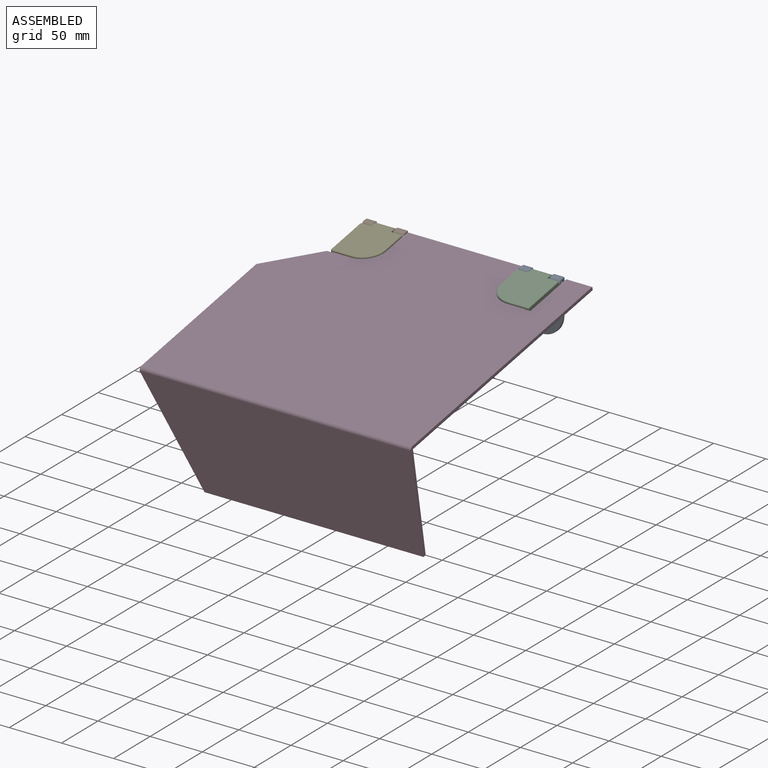
[diagram: assembled view]
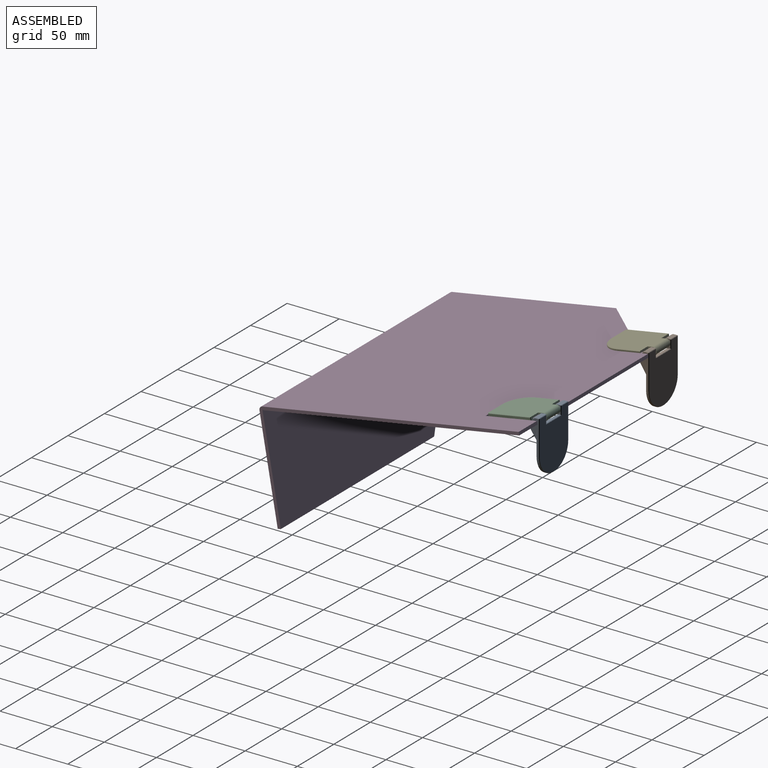
[diagram: assembled view, second angle]
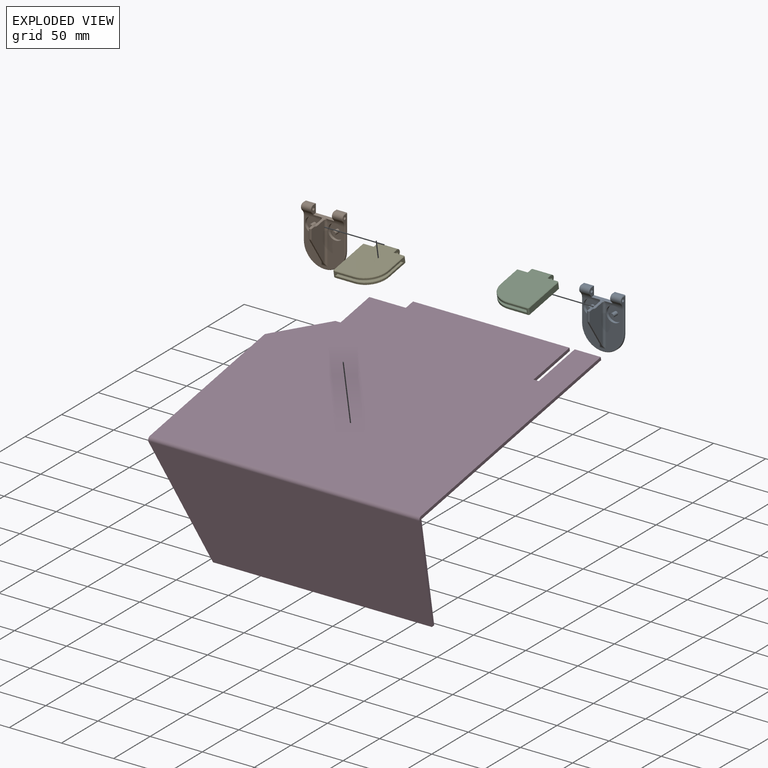
[diagram: exploded view]
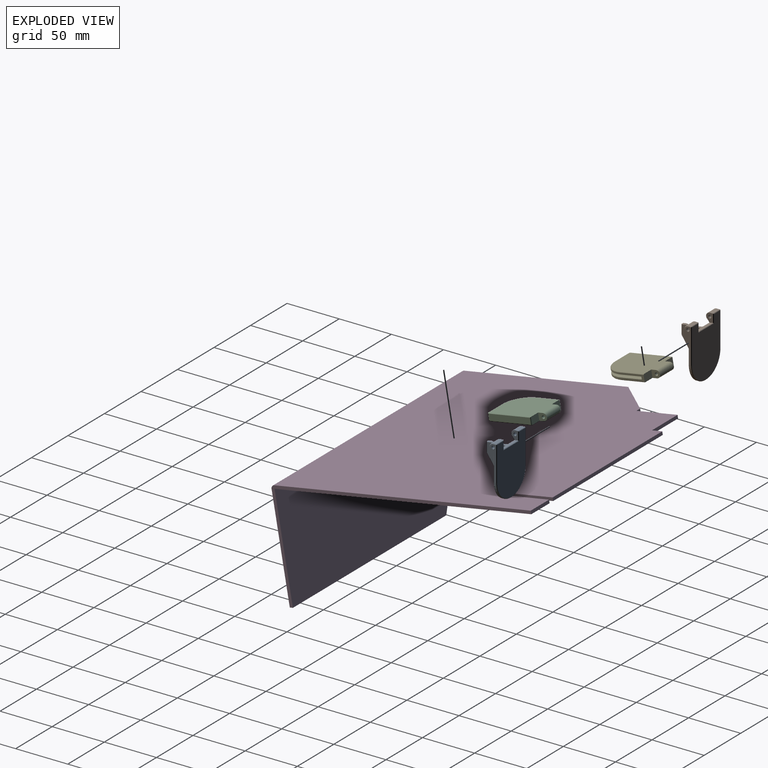
[diagram: exploded view, second angle]
ASSEMBLY  parts=5 mates=4
PART A: 77 faces, bbox 40x53.5x23 mm
  f0: plane 40.78x39mm, normal (0,0,1), area 843.5mm2, adj f6,f23,f24,f25,f29,f32,f48,f49
  f1: plane 9.5x3.08mm, normal (0,1,0), area 29.3mm2, adj f2,f12,f38,f53
  f2: cylinder r=3.5mm len=9.5mm, axis (1,0,0), area 80.8mm2, adj f1,f6,f12,f52
  f3: cylinder r=1.5mm len=10mm, axis (1,0,0), area 94.2mm2, adj f10,f12
  f4: plane 9.5x3.08mm, normal (0,1,0), area 29.3mm2, adj f5,f11,f43,f45
  f5: cylinder r=3.5mm len=9.5mm, axis (1,0,0), area 80.8mm2, adj f4,f6,f11,f46
  f6: cylinder r=8mm len=39mm, axis (1,0,0), area 162.6mm2, adj f0,f2,f5,f11,f12,f13,f16,f22
  f7: plane 52.66x39.16mm, normal (0,0,-1), area 1729.3mm2, adj f37,f38,f39,f40,f41,f42,f43,f44
  f8: cylinder r=1.5mm len=10mm, axis (1,0,0), area 94.2mm2, adj f9,f11
  f9: plane 33x6.08mm, normal (-1,0,0), area 85.9mm2, adj f8,f36,f44,f45,f46,f47,f48
  f10: plane 33x6.08mm, normal (1,0,0), area 85.9mm2, adj f3,f36,f40,f50,f51,f52,f53
  f11: plane 8.68x6.58mm, normal (1,0,0), area 39.5mm2, adj f4,f5,f6,f8,f13,f39,f41
  f12: plane 8.68x6.58mm, normal (-1,0,0), area 39.5mm2, adj f1,f2,f3,f6,f13,f37,f39
  f13: plane 20x3.34mm, normal (0,0.98,0.17), area 67.7mm2, adj f6,f11,f12,f39
  f14: plane 36.55x17.5mm, normal (-1,0,0), area 393.9mm2, adj f25,f26,f56,f58,f59,f61,f62,f64
  f15: plane 36.55x17.5mm, normal (1,0,0), area 393.9mm2, adj f22,f23,f66,f68,f70,f72,f73,f74
  f16: plane 10.26x3.21mm, normal (0,0.98,0.17), area 16.6mm2, adj f6,f17,f54,f56,f75,f76
  f17: cylinder r=5.76mm len=3mm, axis (1,0,0), area 4.6mm2, adj f16,f18,f58,f74
  f18: cylinder r=5.76mm len=3mm, axis (1,0,0), area 4.6mm2, adj f17,f19,f61,f73
  f19: plane 2.54x1.5mm, normal (0,0.98,0.17), area 3.9mm2, adj f18,f64,f69,f72
  f20: plane 8.57x1.5mm, normal (0,0,1), area 12.9mm2, adj f27,f65,f69,f70
  f21: plane 28.89x19.35mm, normal (0,-0.56,0.83), area 54.6mm2, adj f24,f27,f57,f59,f63,f66
  f22: torus R=6mm, axis (-1,0,0), area 9.4mm2, adj f6,f15,f23,f76
  f23: cylinder r=2mm len=38.39mm, axis (0,1,0), area 114mm2, adj f0,f15,f22,f60,f63
  f24: cylinder r=2mm len=6.5mm, axis (1,0,0), area 6mm2, adj f0,f21,f55,f60
  f25: cylinder r=2mm len=38.39mm, axis (0,-1,0), area 114mm2, adj f0,f14,f26,f55,f57
  f26: torus R=6mm, axis (-1,0,0), area 9.4mm2, adj f6,f14,f25,f54
  f27: cylinder r=2mm len=1.5mm, axis (1,0,0), area 1.8mm2, adj f20,f21,f62,f68
  f28: cylinder r=1.85mm len=5.6mm, axis (0,0,1), area 65.1mm2, adj f30,f35
  f29: cylinder r=7.5mm len=15mm, axis (0,0,1), area 122.5mm2, adj f0,f6,f30
  f30: plane 15x15mm, normal (0,0,1), area 166mm2, adj f28,f29
  f31: cylinder r=1.85mm len=5.6mm, axis (0,0,1), area 65.1mm2, adj f33,f34
  f32: cylinder r=7.5mm len=15mm, axis (0,0,1), area 122.5mm2, adj f0,f6,f33
  f33: plane 15x15mm, normal (0,0,1), area 166mm2, adj f31,f32
  f34: plane 3.7x3.7mm, normal (0,0,1), area 10.8mm2, adj f31
  f35: plane 3.7x3.7mm, normal (0,0,1), area 10.8mm2, adj f28
  f36: cylinder r=20mm len=40mm, axis (0,0,1), area 130.7mm2, adj f9,f10,f42,f49
  f37: plane 8.5x0.42mm, normal (-0.71,0,-0.71), area 4.8mm2, adj f7,f12,f38,f39
  f38: plane 9.75x0.42mm, normal (0,0.71,-0.71), area 5.6mm2, adj f1,f7,f37,f40,f53
  f39: plane 20.84x0.49mm, normal (0,0.77,-0.64), area 13.1mm2, adj f7,f11,f12,f13,f37,f41
  f40: plane 33.25x0.42mm, normal (0.71,0,-0.71), area 19.7mm2, adj f7,f10,f38,f42,f53
  f41: plane 8.5x0.42mm, normal (0.71,0,-0.71), area 4.8mm2, adj f7,f11,f39,f43
  f42: cone r=19.58mm half-angle=45deg, axis (0,0,1), area 36.9mm2, adj f7,f36,f40,f44
  f43: plane 9.75x0.42mm, normal (0,0.71,-0.71), area 5.6mm2, adj f4,f7,f41,f44,f45
  f44: plane 33.25x0.42mm, normal (-0.71,0,-0.71), area 19.7mm2, adj f7,f9,f42,f43,f45
  f45: plane 3.33x0.5mm, normal (-0.71,0.71,0), area 2.3mm2, adj f4,f9,f43,f44,f46
  f46: cone r=3mm half-angle=45deg, axis (1,0,0), area 5.6mm2, adj f5,f9,f45,f47
  f47: cone r=8mm half-angle=45deg, axis (-1,0,0), area 5mm2, adj f6,f9,f46,f48
  f48: plane 21.28x0.5mm, normal (-0.71,0,0.71), area 15mm2, adj f0,f9,f47,f49
  f49: cone r=19.5mm half-angle=45deg, axis (0,0,-1), area 43.9mm2, adj f0,f36,f48,f50
  f50: plane 21.28x0.5mm, normal (0.71,0,0.71), area 15mm2, adj f0,f10,f49,f51
  f51: cone r=8.5mm half-angle=45deg, axis (1,0,0), area 5mm2, adj f6,f10,f50,f52
  f52: cone r=3.5mm half-angle=45deg, axis (-1,0,0), area 5.6mm2, adj f2,f10,f51,f53
  f53: plane 3.33x0.5mm, normal (0.71,0.71,0), area 2.3mm2, adj f1,f10,f38,f40,f52
  f54: bspline ~2.53x2.5mm, area 2.1mm2, adj f6,f16,f26,f56
  f55: bspline ~1.39x1.39mm, area 0.2mm2, adj f24,f25,f57
  f56: plane 8.43x1.96mm, normal (-0.71,0.7,0.12), area 6mm2, adj f14,f16,f54,f58
  f57: bspline ~3.38x2.08mm, area 2.1mm2, adj f21,f25,f55,f59
  f58: cone r=5.76mm half-angle=45deg, axis (-1,0,0), area 2.2mm2, adj f14,f17,f56,f61
  f59: plane 26.04x17.66mm, normal (-0.71,-0.39,0.59), area 21.9mm2, adj f14,f21,f57,f62
  f60: bspline ~1.39x1.39mm, area 0.2mm2, adj f23,f24,f63
  f61: cone r=5.26mm half-angle=45deg, axis (1,0,0), area 2.1mm2, adj f14,f18,f58,f64
  f62: cone r=1.5mm half-angle=45deg, axis (1,0,0), area 0.7mm2, adj f14,f27,f59,f65
  f63: bspline ~3.38x2.08mm, area 2.1mm2, adj f21,f23,f60,f66
  f64: plane 2.63x0.94mm, normal (-0.71,0.7,0.12), area 1.8mm2, adj f14,f19,f61,f67
  f65: plane 8.57x0.5mm, normal (-0.71,0,0.71), area 6.1mm2, adj f14,f20,f62,f67
  f66: plane 26.04x17.66mm, normal (0.71,-0.39,0.59), area 21.9mm2, adj f15,f21,f63,f68
  f67: plane 0.5x0.5mm, normal (-0.61,0.51,0.61), area 0.2mm2, adj f64,f65,f69
  f68: cone r=1.5mm half-angle=45deg, axis (-1,0,0), area 0.7mm2, adj f15,f27,f66,f70
  f69: plane 1.5x0.49mm, normal (0,0.64,0.77), area 1mm2, adj f19,f20,f67,f71
  f70: plane 8.57x0.5mm, normal (0.71,0,0.71), area 6.1mm2, adj f15,f20,f68,f71
  f71: plane 0.5x0.5mm, normal (0.61,0.51,0.61), area 0.2mm2, adj f69,f70,f72
  f72: plane 2.63x0.94mm, normal (0.71,0.7,0.12), area 1.8mm2, adj f15,f19,f71,f73
  f73: cone r=5.76mm half-angle=45deg, axis (-1,0,0), area 2.1mm2, adj f15,f18,f72,f74
  f74: cone r=6.26mm half-angle=45deg, axis (1,0,0), area 2.2mm2, adj f15,f17,f73,f75
  f75: plane 8.43x1.96mm, normal (0.71,0.7,0.12), area 6mm2, adj f15,f16,f74,f76
  f76: bspline ~2.53x2.5mm, area 2.1mm2, adj f6,f16,f22,f75
PART B: 77 faces, bbox 40x53.5x23 mm
  f0: plane 40.78x39mm, normal (0,0,1), area 843.5mm2, adj f6,f23,f24,f25,f29,f32,f48,f49
  f1: plane 9.5x3.08mm, normal (0,1,0), area 29.3mm2, adj f2,f12,f38,f53
  f2: cylinder r=3.5mm len=9.5mm, axis (-1,0,0), area 80.8mm2, adj f1,f6,f12,f52
  f3: cylinder r=1.5mm len=10mm, axis (-1,0,0), area 94.2mm2, adj f10,f12
  f4: plane 9.5x3.08mm, normal (0,1,0), area 29.3mm2, adj f5,f11,f43,f45
  f5: cylinder r=3.5mm len=9.5mm, axis (-1,0,0), area 80.8mm2, adj f4,f6,f11,f46
  f6: cylinder r=8mm len=39mm, axis (-1,0,0), area 162.6mm2, adj f0,f2,f5,f11,f12,f13,f16,f22
  f7: plane 52.66x39.16mm, normal (0,0,-1), area 1729.3mm2, adj f37,f38,f39,f40,f41,f42,f43,f44
  f8: cylinder r=1.5mm len=10mm, axis (-1,0,0), area 94.2mm2, adj f9,f11
  f9: plane 33x6.08mm, normal (1,0,0), area 85.9mm2, adj f8,f36,f44,f45,f46,f47,f48
  f10: plane 33x6.08mm, normal (-1,0,0), area 85.9mm2, adj f3,f36,f40,f50,f51,f52,f53
  f11: plane 8.68x6.58mm, normal (-1,0,0), area 39.5mm2, adj f4,f5,f6,f8,f13,f39,f41
  f12: plane 8.68x6.58mm, normal (1,0,0), area 39.5mm2, adj f1,f2,f3,f6,f13,f37,f39
  f13: plane 20x3.34mm, normal (0,0.98,0.17), area 67.7mm2, adj f6,f11,f12,f39
  f14: plane 36.55x17.5mm, normal (1,0,0), area 393.9mm2, adj f25,f26,f56,f58,f59,f61,f62,f64
  f15: plane 36.55x17.5mm, normal (-1,0,0), area 393.9mm2, adj f22,f23,f66,f68,f70,f72,f73,f74
  f16: plane 10.26x3.21mm, normal (0,0.98,0.17), area 16.6mm2, adj f6,f17,f54,f56,f75,f76
  f17: cylinder r=5.76mm len=3mm, axis (-1,0,0), area 4.6mm2, adj f16,f18,f58,f74
  f18: cylinder r=5.76mm len=3mm, axis (-1,0,0), area 4.6mm2, adj f17,f19,f61,f73
  f19: plane 2.54x1.5mm, normal (0,0.98,0.17), area 3.9mm2, adj f18,f64,f69,f72
  f20: plane 8.57x1.5mm, normal (0,0,1), area 12.9mm2, adj f27,f65,f69,f70
  f21: plane 28.89x19.35mm, normal (0,-0.56,0.83), area 54.6mm2, adj f24,f27,f57,f59,f63,f66
  f22: torus R=6mm, axis (1,0,0), area 9.4mm2, adj f6,f15,f23,f76
  f23: cylinder r=2mm len=38.39mm, axis (0,1,0), area 114mm2, adj f0,f15,f22,f60,f63
  f24: cylinder r=2mm len=6.5mm, axis (-1,0,0), area 6mm2, adj f0,f21,f55,f60
  f25: cylinder r=2mm len=38.39mm, axis (0,-1,0), area 114mm2, adj f0,f14,f26,f55,f57
  f26: torus R=6mm, axis (1,0,0), area 9.4mm2, adj f6,f14,f25,f54
  f27: cylinder r=2mm len=1.5mm, axis (-1,0,0), area 1.8mm2, adj f20,f21,f62,f68
  f28: cylinder r=1.85mm len=5.6mm, axis (0,0,1), area 65.1mm2, adj f30,f35
  f29: cylinder r=7.5mm len=15mm, axis (0,0,1), area 122.5mm2, adj f0,f6,f30
  f30: plane 15x15mm, normal (0,0,1), area 166mm2, adj f28,f29
  f31: cylinder r=1.85mm len=5.6mm, axis (0,0,1), area 65.1mm2, adj f33,f34
  f32: cylinder r=7.5mm len=15mm, axis (0,0,1), area 122.5mm2, adj f0,f6,f33
  f33: plane 15x15mm, normal (0,0,1), area 166mm2, adj f31,f32
  f34: plane 3.7x3.7mm, normal (0,0,1), area 10.8mm2, adj f31
  f35: plane 3.7x3.7mm, normal (0,0,1), area 10.8mm2, adj f28
  f36: cylinder r=20mm len=40mm, axis (0,0,1), area 130.7mm2, adj f9,f10,f42,f49
  f37: plane 8.5x0.42mm, normal (0.71,0,-0.71), area 4.8mm2, adj f7,f12,f38,f39
  f38: plane 9.75x0.42mm, normal (0,0.71,-0.71), area 5.6mm2, adj f1,f7,f37,f40,f53
  f39: plane 20.84x0.49mm, normal (0,0.77,-0.64), area 13.1mm2, adj f7,f11,f12,f13,f37,f41
  f40: plane 33.25x0.42mm, normal (-0.71,0,-0.71), area 19.7mm2, adj f7,f10,f38,f42,f53
  f41: plane 8.5x0.42mm, normal (-0.71,0,-0.71), area 4.8mm2, adj f7,f11,f39,f43
  f42: cone r=19.58mm half-angle=45deg, axis (0,0,1), area 36.9mm2, adj f7,f36,f40,f44
  f43: plane 9.75x0.42mm, normal (0,0.71,-0.71), area 5.6mm2, adj f4,f7,f41,f44,f45
  f44: plane 33.25x0.42mm, normal (0.71,0,-0.71), area 19.7mm2, adj f7,f9,f42,f43,f45
  f45: plane 3.33x0.5mm, normal (0.71,0.71,0), area 2.3mm2, adj f4,f9,f43,f44,f46
  f46: cone r=3mm half-angle=45deg, axis (-1,0,0), area 5.6mm2, adj f5,f9,f45,f47
  f47: cone r=8mm half-angle=45deg, axis (1,0,0), area 5mm2, adj f6,f9,f46,f48
  f48: plane 21.28x0.5mm, normal (0.71,0,0.71), area 15mm2, adj f0,f9,f47,f49
  f49: cone r=19.5mm half-angle=45deg, axis (0,0,-1), area 43.9mm2, adj f0,f36,f48,f50
  f50: plane 21.28x0.5mm, normal (-0.71,0,0.71), area 15mm2, adj f0,f10,f49,f51
  f51: cone r=8.5mm half-angle=45deg, axis (-1,0,0), area 5mm2, adj f6,f10,f50,f52
  f52: cone r=3.5mm half-angle=45deg, axis (1,0,0), area 5.6mm2, adj f2,f10,f51,f53
  f53: plane 3.33x0.5mm, normal (-0.71,0.71,0), area 2.3mm2, adj f1,f10,f38,f40,f52
  f54: bspline ~2.53x2.5mm, area 2.1mm2, adj f6,f16,f26,f56
  f55: bspline ~1.39x1.39mm, area 0.2mm2, adj f24,f25,f57
  f56: plane 8.43x1.96mm, normal (0.71,0.7,0.12), area 6mm2, adj f14,f16,f54,f58
  f57: bspline ~3.38x2.08mm, area 2.1mm2, adj f21,f25,f55,f59
  f58: cone r=5.76mm half-angle=45deg, axis (1,0,0), area 2.2mm2, adj f14,f17,f56,f61
  f59: plane 26.04x17.66mm, normal (0.71,-0.39,0.59), area 21.9mm2, adj f14,f21,f57,f62
  f60: bspline ~1.39x1.39mm, area 0.2mm2, adj f23,f24,f63
  f61: cone r=5.26mm half-angle=45deg, axis (-1,0,0), area 2.1mm2, adj f14,f18,f58,f64
  f62: cone r=1.5mm half-angle=45deg, axis (-1,0,0), area 0.7mm2, adj f14,f27,f59,f65
  f63: bspline ~3.38x2.08mm, area 2.1mm2, adj f21,f23,f60,f66
  f64: plane 2.63x0.94mm, normal (0.71,0.7,0.12), area 1.8mm2, adj f14,f19,f61,f67
  f65: plane 8.57x0.5mm, normal (0.71,0,0.71), area 6.1mm2, adj f14,f20,f62,f67
  f66: plane 26.04x17.66mm, normal (-0.71,-0.39,0.59), area 21.9mm2, adj f15,f21,f63,f68
  f67: plane 0.5x0.5mm, normal (0.61,0.51,0.61), area 0.2mm2, adj f64,f65,f69
  f68: cone r=1.5mm half-angle=45deg, axis (1,0,0), area 0.7mm2, adj f15,f27,f66,f70
  f69: plane 1.5x0.49mm, normal (0,0.64,0.77), area 1mm2, adj f19,f20,f67,f71
  f70: plane 8.57x0.5mm, normal (-0.71,0,0.71), area 6.1mm2, adj f15,f20,f68,f71
  f71: plane 0.5x0.5mm, normal (-0.61,0.51,0.61), area 0.2mm2, adj f69,f70,f72
  f72: plane 2.63x0.94mm, normal (-0.71,0.7,0.12), area 1.8mm2, adj f15,f19,f71,f73
  f73: cone r=5.76mm half-angle=45deg, axis (1,0,0), area 2.1mm2, adj f15,f18,f72,f74
  f74: cone r=6.26mm half-angle=45deg, axis (-1,0,0), area 2.2mm2, adj f15,f17,f73,f75
  f75: plane 8.43x1.96mm, normal (-0.71,0.7,0.12), area 6mm2, adj f15,f16,f74,f76
  f76: bspline ~2.53x2.5mm, area 2.1mm2, adj f6,f16,f22,f75
PART C: 29 faces, bbox 40x7x50 mm
  f0: plane 8x7mm, normal (-1,0,0), area 43.7mm2, adj f2,f3,f4,f6,f10
  f1: plane 8x7mm, normal (1,0,0), area 43.7mm2, adj f2,f3,f4,f6,f8
  f2: plane 46x39mm, normal (0,-1,0), area 1622.1mm2, adj f0,f1,f3,f8,f10,f24,f25,f26
  f3: cylinder r=3.5mm len=19mm, axis (1,0,0), area 208.9mm2, adj f0,f1,f2,f4
  f4: plane 46x39mm, normal (0,1,0), area 1622.1mm2, adj f0,f1,f3,f8,f10,f18,f19,f20
  f5: plane 19x6mm, normal (0,0,1), area 69mm2, adj f12,f13,f14,f15,f16,f17,f20,f26
  f6: cylinder r=1.5mm len=19mm, axis (1,0,0), area 179.1mm2, adj f0,f1
  f7: plane 40.5x6mm, normal (1,0,0), area 243mm2, adj f17,f22,f23,f24
  f8: plane 10x7mm, normal (0,0,-1), area 70mm2, adj f1,f2,f4,f23
  f9: plane 22x6mm, normal (-1,0,0), area 83.2mm2, adj f10,f11,f12,f13,f15,f16,f18,f28
  f10: plane 10.5x7mm, normal (0,0,-1), area 73.3mm2, adj f0,f2,f4,f9,f18,f28
  f11: plane 38x2.5mm, normal (0,0,1), area 95mm2, adj f9,f12,f13,f14
  f12: plane 39.5x38mm, normal (0,-1,0), area 1415.2mm2, adj f5,f9,f11,f14,f15
  f13: plane 39.5x38mm, normal (0,1,0), area 1415.2mm2, adj f5,f9,f11,f14,f16
  f14: plane 39.5x2.5mm, normal (-1,0,0), area 98.7mm2, adj f5,f11,f12,f13
  f15: cylinder r=20mm len=20mm, axis (0,-1,0), area 55mm2, adj f5,f9,f12,f19
  f16: cylinder r=20mm len=20mm, axis (0,-1,0), area 55mm2, adj f5,f9,f13,f27
  f17: plane 6x1mm, normal (0.71,0,0.71), area 8.5mm2, adj f5,f7,f21,f25
  f18: plane 22x0.5mm, normal (-0.71,0.71,0), area 15.6mm2, adj f4,f9,f10,f19
  f19: cone r=19.5mm half-angle=45deg, axis (0,-1,0), area 21.9mm2, adj f4,f15,f18,f20
  f20: plane 19x0.5mm, normal (0,0.71,0.71), area 13.4mm2, adj f4,f5,f19,f21
  f21: plane 1.21x1.21mm, normal (0.5,0.71,0.5), area 0.9mm2, adj f4,f17,f20,f22
  f22: plane 41x0.5mm, normal (0.71,0.71,0), area 28.7mm2, adj f4,f7,f21,f23
  f23: plane 7x0.5mm, normal (0.71,0,-0.71), area 4.6mm2, adj f7,f8,f22,f24
  f24: plane 41x0.5mm, normal (0.71,-0.71,0), area 28.7mm2, adj f2,f7,f23,f25
  f25: plane 1.21x1.21mm, normal (0.5,-0.71,0.5), area 0.9mm2, adj f2,f17,f24,f26
  f26: plane 19x0.5mm, normal (0,-0.71,0.71), area 13.4mm2, adj f2,f5,f25,f27
  f27: cone r=19.5mm half-angle=45deg, axis (0,1,0), area 21.9mm2, adj f2,f16,f26,f28
  f28: plane 22x0.5mm, normal (-0.71,-0.71,0), area 15.6mm2, adj f2,f9,f10,f27
PART D: 23 faces, bbox 260x253x103 mm
  f0: plane 150x3mm, normal (0,1,0), area 450mm2, adj f1,f11,f12,f13
  f1: plane 10x3mm, normal (-1,0,0), area 30mm2, adj f0,f2,f12,f13
  f2: plane 35x3mm, normal (0,1,0), area 105mm2, adj f1,f3,f12,f13
  f3: plane 40x3mm, normal (-1,0,0), area 120mm2, adj f2,f4,f12,f13
  f4: plane 5x3mm, normal (0,1,0), area 15mm2, adj f3,f5,f12,f13
  f5: plane 40x40mm, normal (-0.71,0.71,0), area 169.7mm2, adj f4,f6,f12,f13
  f6: plane 159.8x3mm, normal (-1,0,0), area 479.4mm2, adj f5,f12,f13,f19
  f7: plane 249.8x3mm, normal (1,0,0), area 749.4mm2, adj f8,f12,f13,f20
  f8: plane 25x3mm, normal (0,1,0), area 75mm2, adj f7,f9,f12,f13
  f9: plane 50x3mm, normal (-1,0,0), area 150mm2, adj f8,f10,f12,f13
  f10: plane 5x3mm, normal (0,1,0), area 15mm2, adj f9,f11,f12,f13
  f11: plane 50x3mm, normal (1,0,0), area 150mm2, adj f0,f10,f12,f13
  f12: plane 260x249.8mm, normal (0,0,1), area 61298mm2, adj f0,f1,f2,f3,f4,f5,f6,f7
  f13: plane 260x249.8mm, normal (0,0,-1), area 61298mm2, adj f0,f1,f2,f3,f4,f5,f6,f7
  f14: plane 210x3mm, normal (0,0,-1), area 630mm2, adj f15,f16,f17,f18
  f15: plane 99.8x3mm, normal (1,0,0), area 299.4mm2, adj f14,f17,f18,f20
  f16: plane 99.8x49.9mm, normal (-0.89,0,-0.45), area 334.7mm2, adj f14,f17,f18,f19
  f17: plane 259.9x99.8mm, normal (0,-1,0), area 23448mm2, adj f14,f15,f16,f21
  f18: plane 259.9x99.8mm, normal (0,1,0), area 23448mm2, adj f14,f15,f16,f22
  f19: bspline ~3.2x3.2mm, area 8mm2, adj f6,f16,f21,f22
  f20: plane 3.2x3.2mm, normal (1,0,0), area 8mm2, adj f7,f15,f21,f22
  f21: cylinder r=3.2mm len=260mm, axis (-1,0,0), area 1306.7mm2, adj f12,f17,f19,f20
  f22: cylinder r=0.2mm len=260mm, axis (-1,0,0), area 81.7mm2, adj f13,f18,f19,f20
PART E: 29 faces, bbox 40x7x50 mm
  f0: plane 8x7mm, normal (1,0,0), area 43.7mm2, adj f2,f3,f4,f6,f10
  f1: plane 8x7mm, normal (-1,0,0), area 43.7mm2, adj f2,f3,f4,f6,f8
  f2: plane 46x39mm, normal (0,-1,0), area 1622.1mm2, adj f0,f1,f3,f8,f10,f24,f25,f26
  f3: cylinder r=3.5mm len=19mm, axis (-1,0,0), area 208.9mm2, adj f0,f1,f2,f4
  f4: plane 46x39mm, normal (0,1,0), area 1622.1mm2, adj f0,f1,f3,f8,f10,f18,f19,f20
  f5: plane 19x6mm, normal (0,0,1), area 69mm2, adj f12,f13,f14,f15,f16,f17,f20,f26
  f6: cylinder r=1.5mm len=19mm, axis (-1,0,0), area 179.1mm2, adj f0,f1
  f7: plane 40.5x6mm, normal (-1,0,0), area 243mm2, adj f17,f22,f23,f24
  f8: plane 10x7mm, normal (0,0,-1), area 70mm2, adj f1,f2,f4,f23
  f9: plane 22x6mm, normal (1,0,0), area 83.2mm2, adj f10,f11,f12,f13,f15,f16,f18,f28
  f10: plane 10.5x7mm, normal (0,0,-1), area 73.3mm2, adj f0,f2,f4,f9,f18,f28
  f11: plane 38x2.5mm, normal (0,0,1), area 95mm2, adj f9,f12,f13,f14
  f12: plane 39.5x38mm, normal (0,-1,0), area 1415.2mm2, adj f5,f9,f11,f14,f15
  f13: plane 39.5x38mm, normal (0,1,0), area 1415.2mm2, adj f5,f9,f11,f14,f16
  f14: plane 39.5x2.5mm, normal (1,0,0), area 98.7mm2, adj f5,f11,f12,f13
  f15: cylinder r=20mm len=20mm, axis (0,-1,0), area 55mm2, adj f5,f9,f12,f19
  f16: cylinder r=20mm len=20mm, axis (0,-1,0), area 55mm2, adj f5,f9,f13,f27
  f17: plane 6x1mm, normal (-0.71,0,0.71), area 8.5mm2, adj f5,f7,f21,f25
  f18: plane 22x0.5mm, normal (0.71,0.71,0), area 15.6mm2, adj f4,f9,f10,f19
  f19: cone r=19.5mm half-angle=45deg, axis (0,-1,0), area 21.9mm2, adj f4,f15,f18,f20
  f20: plane 19x0.5mm, normal (0,0.71,0.71), area 13.4mm2, adj f4,f5,f19,f21
  f21: plane 1.21x1.21mm, normal (-0.5,0.71,0.5), area 0.9mm2, adj f4,f17,f20,f22
  f22: plane 41x0.5mm, normal (-0.71,0.71,0), area 28.7mm2, adj f4,f7,f21,f23
  f23: plane 7x0.5mm, normal (-0.71,0,-0.71), area 4.6mm2, adj f7,f8,f22,f24
  f24: plane 41x0.5mm, normal (-0.71,-0.71,0), area 28.7mm2, adj f2,f7,f23,f25
  f25: plane 1.21x1.21mm, normal (-0.5,-0.71,0.5), area 0.9mm2, adj f2,f17,f24,f26
  f26: plane 19x0.5mm, normal (0,-0.71,0.71), area 13.4mm2, adj f2,f5,f25,f27
  f27: cone r=19.5mm half-angle=45deg, axis (0,1,0), area 21.9mm2, adj f2,f16,f26,f28
  f28: plane 22x0.5mm, normal (0.71,-0.71,0), area 15.6mm2, adj f2,f9,f10,f27
PLACE A rot(axis=(1,0,0),90deg) t=(0,3.5,0)mm
PLACE B rot(axis=(1,0,0),90deg) t=(0,3.5,0)mm
PLACE C rot(axis=(1,0,0),100.1deg) t=(0,3.45,0.61)mm
PLACE D rot(axis=(1,0,0),10.1deg) t=(-98,3.17,-0.7)mm
PLACE E rot(axis=(1,0,0),100.1deg) t=(0,3.45,0.61)mm
MATE fastened E.f13 <-> D.f13  axis (0,0.18,-0.98) through (-93,-6.67,-2.46)mm
MATE revolute E.f6 <-> B.f2  axis (-1,0,0) through (-65.5,0,0)mm
MATE planar D.f13 <-> C.f13  axis (0,0.18,-0.98) through (17,3.17,-0.7)mm
MATE revolute C.f6 <-> A.f3  axis (1,0,0) through (84.5,0,0)mm
